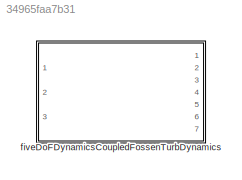
MODEL slx_34965faa7b31
KIND library
CONFIG AbsTol = auto
CONFIG EnableMultiTasking = off
CONFIG FixedStep = auto
CONFIG MaxStep = auto
CONFIG MinStep = auto
CONFIG RelTol = 1e-3
CONFIG SampleTimeConstraint = Unconstrained
CONFIG SolverName = VariableStepAuto
CONFIG StartTime = 0.0
CONFIG StopTime = 10.0
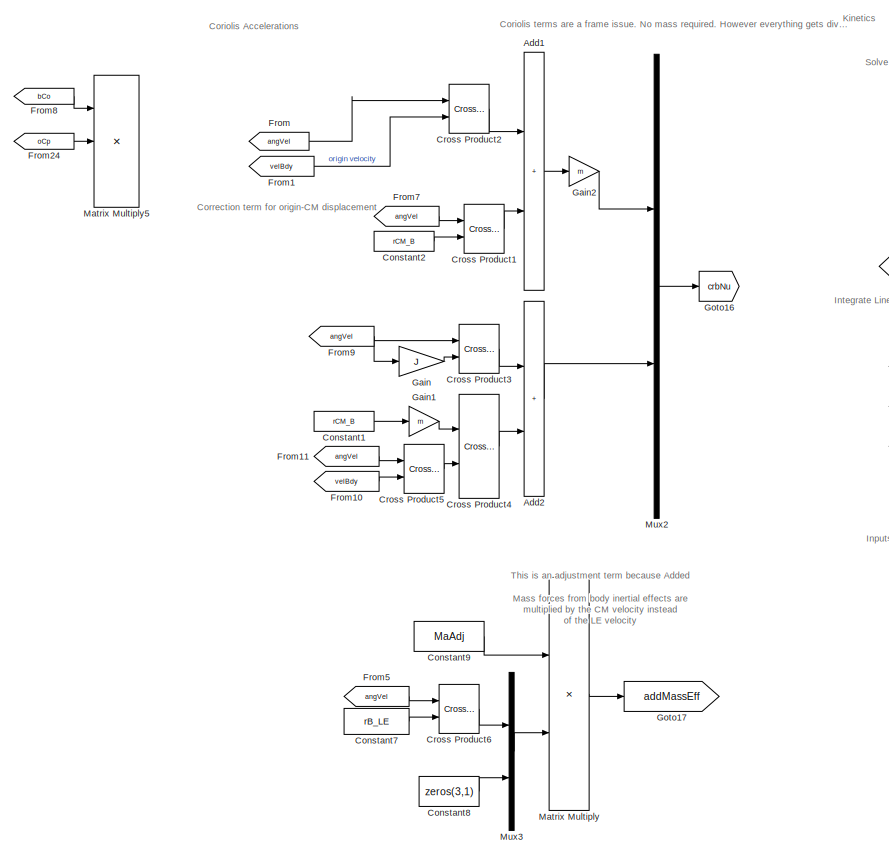
[diagram: fiveDoFDynamicsCoupledFossenTurbDynamics - part 1/3, left side, full height]
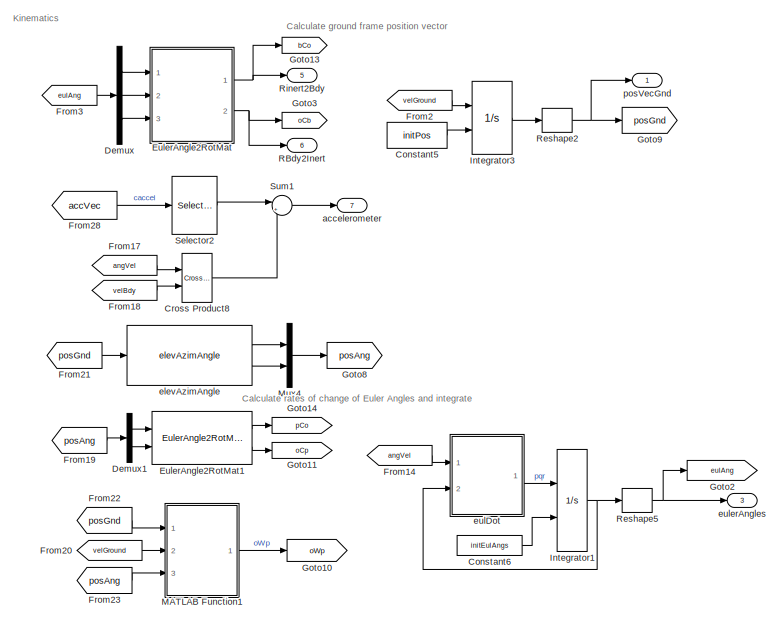
[diagram: fiveDoFDynamicsCoupledFossenTurbDynamics - part 2/3, middle right region]
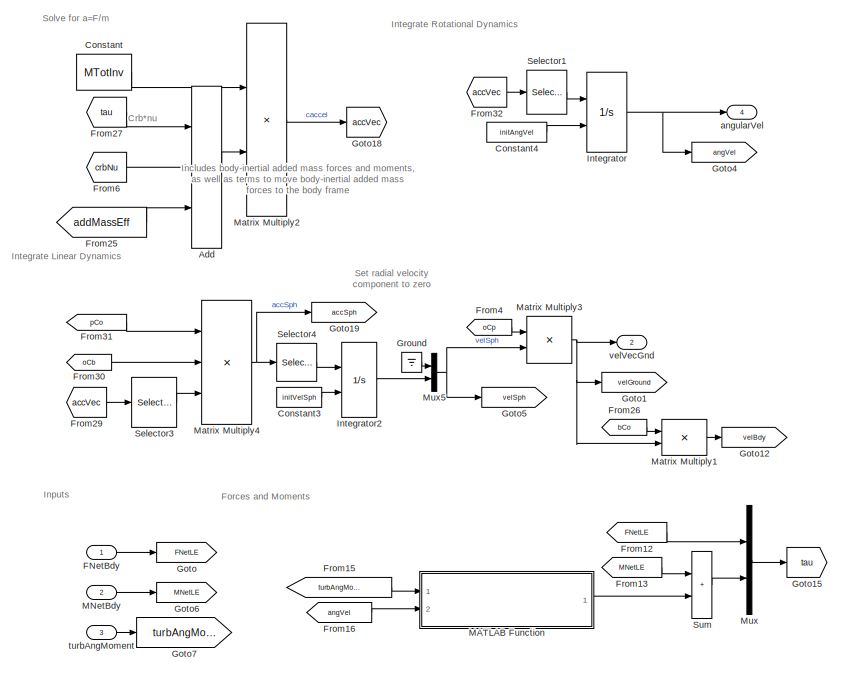
[diagram: fiveDoFDynamicsCoupledFossenTurbDynamics - part 3/3, center side, full height]
BLOCK [SubSystem] fiveDoFDynamicsCoupledFossenTurbDynamics
  Ports = [3, 7]
  RequestExecContextInheritance = off
  VariantControl = VSS_sixDoFDynamics_sixDoFDynamicsCoupledFossenTurbDynamics
BLOCK [Sum] fiveDoFDynamicsCoupledFossenTurbDynamics/Add
  IconShape = rectangular
  Inputs = +-+
  Ports = [3, 1]
BLOCK [Sum] fiveDoFDynamicsCoupledFossenTurbDynamics/Add1
  IconShape = rectangular
  Ports = [2, 1]
BLOCK [Sum] fiveDoFDynamicsCoupledFossenTurbDynamics/Add2
  IconShape = rectangular
  Ports = [2, 1]
BLOCK [Constant] fiveDoFDynamicsCoupledFossenTurbDynamics/Constant
  Value = MTotInv
  VectorParams1D = off
BLOCK [Constant] fiveDoFDynamicsCoupledFossenTurbDynamics/Constant1
  Value = rCM_B
BLOCK [Constant] fiveDoFDynamicsCoupledFossenTurbDynamics/Constant2
  Value = rCM_B
BLOCK [Constant] fiveDoFDynamicsCoupledFossenTurbDynamics/Constant3
  Value = initVelSph
BLOCK [Constant] fiveDoFDynamicsCoupledFossenTurbDynamics/Constant4
  Value = initAngVel
BLOCK [Constant] fiveDoFDynamicsCoupledFossenTurbDynamics/Constant5
  Value = initPos
BLOCK [Constant] fiveDoFDynamicsCoupledFossenTurbDynamics/Constant6
  Value = initEulAngs
BLOCK [Constant] fiveDoFDynamicsCoupledFossenTurbDynamics/Constant7
  Value = rB_LE
BLOCK [Constant] fiveDoFDynamicsCoupledFossenTurbDynamics/Constant8
  Value = zeros(3,1)
BLOCK [Constant] fiveDoFDynamicsCoupledFossenTurbDynamics/Constant9
  Value = MaAdj
BLOCK [Reference] fiveDoFDynamicsCoupledFossenTurbDynamics/Cross Product1  REF=vrlib/Utilities/Cross Product
  Ports = [2, 1]
  SourceBlock = vrlib/Utilities/Cross Product
  SourceProductBaseCode = SL
  SourceType = Cross Product
BLOCK [Reference] fiveDoFDynamicsCoupledFossenTurbDynamics/Cross Product2  REF=vrlib/Utilities/Cross Product
  Ports = [2, 1]
  SourceBlock = vrlib/Utilities/Cross Product
  SourceProductBaseCode = SL
  SourceType = Cross Product
BLOCK [Reference] fiveDoFDynamicsCoupledFossenTurbDynamics/Cross Product3  REF=vrlib/Utilities/Cross Product
  Ports = [2, 1]
  SourceBlock = vrlib/Utilities/Cross Product
  SourceProductBaseCode = SL
  SourceType = Cross Product
BLOCK [Reference] fiveDoFDynamicsCoupledFossenTurbDynamics/Cross Product4  REF=vrlib/Utilities/Cross Product
  Ports = [2, 1]
  SourceBlock = vrlib/Utilities/Cross Product
  SourceProductBaseCode = SL
  SourceType = Cross Product
BLOCK [Reference] fiveDoFDynamicsCoupledFossenTurbDynamics/Cross Product5  REF=vrlib/Utilities/Cross Product
  Ports = [2, 1]
  SourceBlock = vrlib/Utilities/Cross Product
  SourceProductBaseCode = SL
  SourceType = Cross Product
BLOCK [Reference] fiveDoFDynamicsCoupledFossenTurbDynamics/Cross Product6  REF=vrlib/Utilities/Cross Product
  Ports = [2, 1]
  SourceBlock = vrlib/Utilities/Cross Product
  SourceProductBaseCode = SL
  SourceType = Cross Product
BLOCK [Reference] fiveDoFDynamicsCoupledFossenTurbDynamics/Cross Product8  REF=vrlib/Utilities/Cross Product
  Ports = [2, 1]
  SourceBlock = vrlib/Utilities/Cross Product
  SourceProductBaseCode = SL
  SourceType = Cross Product
BLOCK [Demux] fiveDoFDynamicsCoupledFossenTurbDynamics/Demux
  Outputs = 3
  Ports = [1, 3]
BLOCK [Demux] fiveDoFDynamicsCoupledFossenTurbDynamics/Demux1
  Outputs = 2
  Ports = [1, 2]
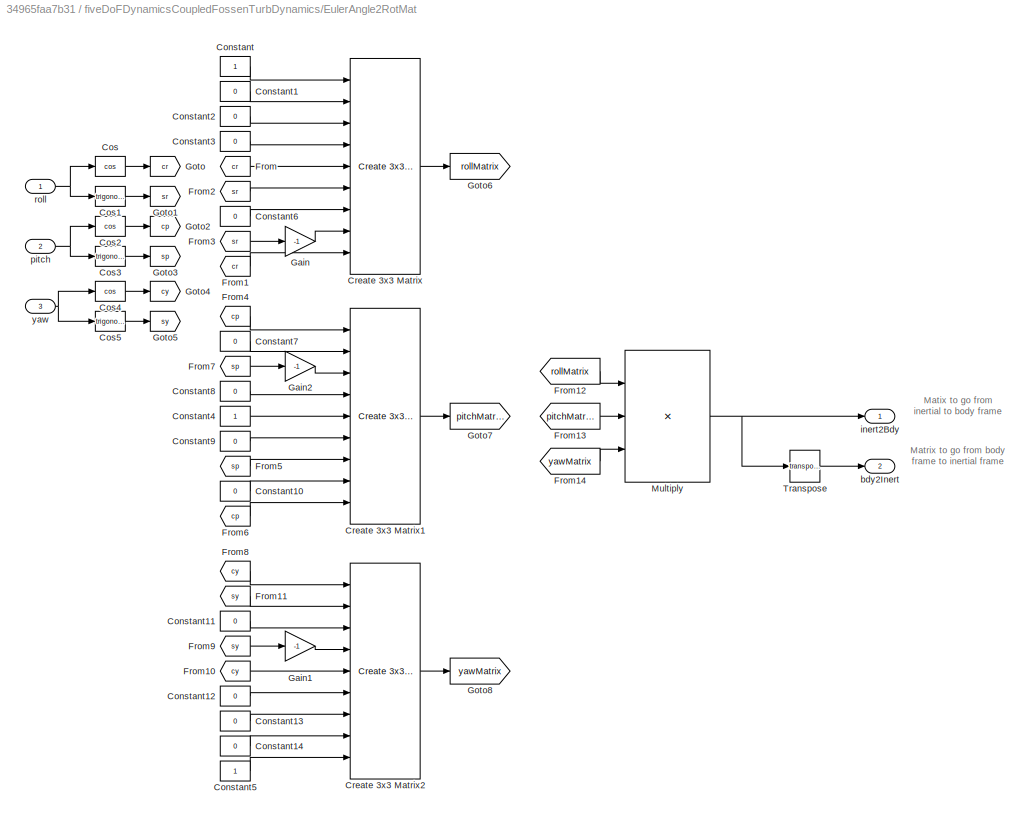
BLOCK [SubSystem] fiveDoFDynamicsCoupledFossenTurbDynamics/EulerAngle2RotMat
  AncestorBlock = eulAng2RotMat_ul/EulerAngle2RotMat
  Ports = [3, 2]
  RequestExecContextInheritance = off
BLOCK [Constant] fiveDoFDynamicsCoupledFossenTurbDynamics/EulerAngle2RotMat/Constant
BLOCK [Constant] fiveDoFDynamicsCoupledFossenTurbDynamics/EulerAngle2RotMat/Constant1
  Value = 0
BLOCK [Constant] fiveDoFDynamicsCoupledFossenTurbDynamics/EulerAngle2RotMat/Constant10
  Value = 0
BLOCK [Constant] fiveDoFDynamicsCoupledFossenTurbDynamics/EulerAngle2RotMat/Constant11
  Value = 0
BLOCK [Constant] fiveDoFDynamicsCoupledFossenTurbDynamics/EulerAngle2RotMat/Constant12
  Value = 0
BLOCK [Constant] fiveDoFDynamicsCoupledFossenTurbDynamics/EulerAngle2RotMat/Constant13
  Value = 0
BLOCK [Constant] fiveDoFDynamicsCoupledFossenTurbDynamics/EulerAngle2RotMat/Constant14
  Value = 0
BLOCK [Constant] fiveDoFDynamicsCoupledFossenTurbDynamics/EulerAngle2RotMat/Constant2
  Value = 0
BLOCK [Constant] fiveDoFDynamicsCoupledFossenTurbDynamics/EulerAngle2RotMat/Constant3
  Value = 0
BLOCK [Constant] fiveDoFDynamicsCoupledFossenTurbDynamics/EulerAngle2RotMat/Constant4
BLOCK [Constant] fiveDoFDynamicsCoupledFossenTurbDynamics/EulerAngle2RotMat/Constant5
BLOCK [Constant] fiveDoFDynamicsCoupledFossenTurbDynamics/EulerAngle2RotMat/Constant6
  Value = 0
BLOCK [Constant] fiveDoFDynamicsCoupledFossenTurbDynamics/EulerAngle2RotMat/Constant7
  Value = 0
BLOCK [Constant] fiveDoFDynamicsCoupledFossenTurbDynamics/EulerAngle2RotMat/Constant8
  Value = 0
BLOCK [Constant] fiveDoFDynamicsCoupledFossenTurbDynamics/EulerAngle2RotMat/Constant9
  Value = 0
BLOCK [Trigonometry] fiveDoFDynamicsCoupledFossenTurbDynamics/EulerAngle2RotMat/Cos
  Operator = cos
  Ports = [1, 1]
BLOCK [Trigonometry] fiveDoFDynamicsCoupledFossenTurbDynamics/EulerAngle2RotMat/Cos1
  Ports = [1, 1]
BLOCK [Trigonometry] fiveDoFDynamicsCoupledFossenTurbDynamics/EulerAngle2RotMat/Cos2
  Operator = cos
  Ports = [1, 1]
BLOCK [Trigonometry] fiveDoFDynamicsCoupledFossenTurbDynamics/EulerAngle2RotMat/Cos3
  Ports = [1, 1]
BLOCK [Trigonometry] fiveDoFDynamicsCoupledFossenTurbDynamics/EulerAngle2RotMat/Cos4
  Operator = cos
  Ports = [1, 1]
BLOCK [Trigonometry] fiveDoFDynamicsCoupledFossenTurbDynamics/EulerAngle2RotMat/Cos5
  Ports = [1, 1]
BLOCK [Reference] fiveDoFDynamicsCoupledFossenTurbDynamics/EulerAngle2RotMat/Create 3x3 Matrix  REF=sharedutil/Create 3x3 Matrix
  Ports = [9, 1]
  SourceBlock = sharedutil/Create 3x3 Matrix
  SourceProductBaseCode = AE,PW,DR,MT,VE
  SourceType = Create 3x3 Matrix
BLOCK [Reference] fiveDoFDynamicsCoupledFossenTurbDynamics/EulerAngle2RotMat/Create 3x3 Matrix1  REF=sharedutil/Create 3x3 Matrix
  Ports = [9, 1]
  SourceBlock = sharedutil/Create 3x3 Matrix
  SourceProductBaseCode = AE,PW,DR,MT,VE
  SourceType = Create 3x3 Matrix
BLOCK [Reference] fiveDoFDynamicsCoupledFossenTurbDynamics/EulerAngle2RotMat/Create 3x3 Matrix2  REF=sharedutil/Create 3x3 Matrix
  Ports = [9, 1]
  SourceBlock = sharedutil/Create 3x3 Matrix
  SourceProductBaseCode = AE,PW,DR,MT,VE
  SourceType = Create 3x3 Matrix
BLOCK [From] fiveDoFDynamicsCoupledFossenTurbDynamics/EulerAngle2RotMat/From
  GotoTag = cr
BLOCK [From] fiveDoFDynamicsCoupledFossenTurbDynamics/EulerAngle2RotMat/From1
  GotoTag = cr
BLOCK [From] fiveDoFDynamicsCoupledFossenTurbDynamics/EulerAngle2RotMat/From10
  GotoTag = cy
BLOCK [From] fiveDoFDynamicsCoupledFossenTurbDynamics/EulerAngle2RotMat/From11
  GotoTag = sy
BLOCK [From] fiveDoFDynamicsCoupledFossenTurbDynamics/EulerAngle2RotMat/From12
  GotoTag = rollMatrix
BLOCK [From] fiveDoFDynamicsCoupledFossenTurbDynamics/EulerAngle2RotMat/From13
  GotoTag = pitchMatrix
BLOCK [From] fiveDoFDynamicsCoupledFossenTurbDynamics/EulerAngle2RotMat/From14
  GotoTag = yawMatrix
BLOCK [From] fiveDoFDynamicsCoupledFossenTurbDynamics/EulerAngle2RotMat/From2
  GotoTag = sr
BLOCK [From] fiveDoFDynamicsCoupledFossenTurbDynamics/EulerAngle2RotMat/From3
  GotoTag = sr
BLOCK [From] fiveDoFDynamicsCoupledFossenTurbDynamics/EulerAngle2RotMat/From4
  GotoTag = cp
BLOCK [From] fiveDoFDynamicsCoupledFossenTurbDynamics/EulerAngle2RotMat/From5
  GotoTag = sp
BLOCK [From] fiveDoFDynamicsCoupledFossenTurbDynamics/EulerAngle2RotMat/From6
  GotoTag = cp
BLOCK [From] fiveDoFDynamicsCoupledFossenTurbDynamics/EulerAngle2RotMat/From7
  GotoTag = sp
BLOCK [From] fiveDoFDynamicsCoupledFossenTurbDynamics/EulerAngle2RotMat/From8
  GotoTag = cy
BLOCK [From] fiveDoFDynamicsCoupledFossenTurbDynamics/EulerAngle2RotMat/From9
  GotoTag = sy
BLOCK [Gain] fiveDoFDynamicsCoupledFossenTurbDynamics/EulerAngle2RotMat/Gain
  Gain = -1
BLOCK [Gain] fiveDoFDynamicsCoupledFossenTurbDynamics/EulerAngle2RotMat/Gain1
  Gain = -1
BLOCK [Gain] fiveDoFDynamicsCoupledFossenTurbDynamics/EulerAngle2RotMat/Gain2
  Gain = -1
BLOCK [Goto] fiveDoFDynamicsCoupledFossenTurbDynamics/EulerAngle2RotMat/Goto
  GotoTag = cr
BLOCK [Goto] fiveDoFDynamicsCoupledFossenTurbDynamics/EulerAngle2RotMat/Goto1
  GotoTag = sr
BLOCK [Goto] fiveDoFDynamicsCoupledFossenTurbDynamics/EulerAngle2RotMat/Goto2
  GotoTag = cp
BLOCK [Goto] fiveDoFDynamicsCoupledFossenTurbDynamics/EulerAngle2RotMat/Goto3
  GotoTag = sp
BLOCK [Goto] fiveDoFDynamicsCoupledFossenTurbDynamics/EulerAngle2RotMat/Goto4
  GotoTag = cy
BLOCK [Goto] fiveDoFDynamicsCoupledFossenTurbDynamics/EulerAngle2RotMat/Goto5
  GotoTag = sy
BLOCK [Goto] fiveDoFDynamicsCoupledFossenTurbDynamics/EulerAngle2RotMat/Goto6
  GotoTag = rollMatrix
BLOCK [Goto] fiveDoFDynamicsCoupledFossenTurbDynamics/EulerAngle2RotMat/Goto7
  GotoTag = pitchMatrix
BLOCK [Goto] fiveDoFDynamicsCoupledFossenTurbDynamics/EulerAngle2RotMat/Goto8
  GotoTag = yawMatrix
BLOCK [Product] fiveDoFDynamicsCoupledFossenTurbDynamics/EulerAngle2RotMat/Multiply
  Inputs = 3
  Multiplication = Matrix(*)
  Ports = [3, 1]
BLOCK [Math] fiveDoFDynamicsCoupledFossenTurbDynamics/EulerAngle2RotMat/Transpose
  Operator = transpose
  Ports = [1, 1]
  SignedPower = on
BLOCK [Outport] fiveDoFDynamicsCoupledFossenTurbDynamics/EulerAngle2RotMat/bdy2Inert
  Port = 2
  VectorParamsAs1DForOutWhenUnconnected = off
BLOCK [Outport] fiveDoFDynamicsCoupledFossenTurbDynamics/EulerAngle2RotMat/inert2Bdy
  VectorParamsAs1DForOutWhenUnconnected = off
BLOCK [Inport] fiveDoFDynamicsCoupledFossenTurbDynamics/EulerAngle2RotMat/pitch
  Port = 2
BLOCK [Inport] fiveDoFDynamicsCoupledFossenTurbDynamics/EulerAngle2RotMat/roll
BLOCK [Inport] fiveDoFDynamicsCoupledFossenTurbDynamics/EulerAngle2RotMat/yaw
  Port = 3
BLOCK [Reference] fiveDoFDynamicsCoupledFossenTurbDynamics/EulerAngle2RotMat1  REF=posAng2RotMat_ul/EulerAngle2RotMat
  Ports = [2, 2]
  SourceBlock = posAng2RotMat_ul/EulerAngle2RotMat
  SourceType = SubSystem
BLOCK [Inport] fiveDoFDynamicsCoupledFossenTurbDynamics/FNetBdy
BLOCK [From] fiveDoFDynamicsCoupledFossenTurbDynamics/From
  GotoTag = angVel
BLOCK [From] fiveDoFDynamicsCoupledFossenTurbDynamics/From1
  GotoTag = velBdy
BLOCK [From] fiveDoFDynamicsCoupledFossenTurbDynamics/From10
  GotoTag = velBdy
BLOCK [From] fiveDoFDynamicsCoupledFossenTurbDynamics/From11
  GotoTag = angVel
BLOCK [From] fiveDoFDynamicsCoupledFossenTurbDynamics/From12
  GotoTag = FNetLE
BLOCK [From] fiveDoFDynamicsCoupledFossenTurbDynamics/From13
  GotoTag = MNetLE
BLOCK [From] fiveDoFDynamicsCoupledFossenTurbDynamics/From14
  GotoTag = angVel
BLOCK [From] fiveDoFDynamicsCoupledFossenTurbDynamics/From15
  GotoTag = turbAngMoment
BLOCK [From] fiveDoFDynamicsCoupledFossenTurbDynamics/From16
  GotoTag = angVel
BLOCK [From] fiveDoFDynamicsCoupledFossenTurbDynamics/From17
  GotoTag = angVel
BLOCK [From] fiveDoFDynamicsCoupledFossenTurbDynamics/From18
  GotoTag = velBdy
BLOCK [From] fiveDoFDynamicsCoupledFossenTurbDynamics/From19
  GotoTag = posAng
BLOCK [From] fiveDoFDynamicsCoupledFossenTurbDynamics/From2
  GotoTag = velGround
BLOCK [From] fiveDoFDynamicsCoupledFossenTurbDynamics/From20
  GotoTag = velGround
BLOCK [From] fiveDoFDynamicsCoupledFossenTurbDynamics/From21
  GotoTag = posGnd
BLOCK [From] fiveDoFDynamicsCoupledFossenTurbDynamics/From22
  GotoTag = posGnd
BLOCK [From] fiveDoFDynamicsCoupledFossenTurbDynamics/From23
  GotoTag = posAng
BLOCK [From] fiveDoFDynamicsCoupledFossenTurbDynamics/From24
  Commented = on
  GotoTag = oCp
BLOCK [From] fiveDoFDynamicsCoupledFossenTurbDynamics/From25
  GotoTag = addMassEff
BLOCK [From] fiveDoFDynamicsCoupledFossenTurbDynamics/From26
  GotoTag = bCo
BLOCK [From] fiveDoFDynamicsCoupledFossenTurbDynamics/From27
  GotoTag = tau
BLOCK [From] fiveDoFDynamicsCoupledFossenTurbDynamics/From28
  GotoTag = accVec
BLOCK [From] fiveDoFDynamicsCoupledFossenTurbDynamics/From29
  GotoTag = accVec
BLOCK [From] fiveDoFDynamicsCoupledFossenTurbDynamics/From3
  GotoTag = eulAng
BLOCK [From] fiveDoFDynamicsCoupledFossenTurbDynamics/From30
  GotoTag = oCb
BLOCK [From] fiveDoFDynamicsCoupledFossenTurbDynamics/From31
  GotoTag = pCo
BLOCK [From] fiveDoFDynamicsCoupledFossenTurbDynamics/From32
  GotoTag = accVec
BLOCK [From] fiveDoFDynamicsCoupledFossenTurbDynamics/From4
  GotoTag = oCp
BLOCK [From] fiveDoFDynamicsCoupledFossenTurbDynamics/From5
  GotoTag = angVel
BLOCK [From] fiveDoFDynamicsCoupledFossenTurbDynamics/From6
  GotoTag = crbNu
BLOCK [From] fiveDoFDynamicsCoupledFossenTurbDynamics/From7
  GotoTag = angVel
BLOCK [From] fiveDoFDynamicsCoupledFossenTurbDynamics/From8
  Commented = on
  GotoTag = bCo
BLOCK [From] fiveDoFDynamicsCoupledFossenTurbDynamics/From9
  GotoTag = angVel
BLOCK [Gain] fiveDoFDynamicsCoupledFossenTurbDynamics/Gain
  Gain = J
  Multiplication = Matrix(K*u)
BLOCK [Gain] fiveDoFDynamicsCoupledFossenTurbDynamics/Gain1
  Gain = m
BLOCK [Gain] fiveDoFDynamicsCoupledFossenTurbDynamics/Gain2
  Gain = m
BLOCK [Goto] fiveDoFDynamicsCoupledFossenTurbDynamics/Goto
  GotoTag = FNetLE
BLOCK [Goto] fiveDoFDynamicsCoupledFossenTurbDynamics/Goto1
  GotoTag = velGround
BLOCK [Goto] fiveDoFDynamicsCoupledFossenTurbDynamics/Goto10
  GotoTag = oWp
BLOCK [Goto] fiveDoFDynamicsCoupledFossenTurbDynamics/Goto11
  GotoTag = oCp
BLOCK [Goto] fiveDoFDynamicsCoupledFossenTurbDynamics/Goto12
  GotoTag = velBdy
BLOCK [Goto] fiveDoFDynamicsCoupledFossenTurbDynamics/Goto13
  GotoTag = bCo
BLOCK [Goto] fiveDoFDynamicsCoupledFossenTurbDynamics/Goto14
  GotoTag = pCo
BLOCK [Goto] fiveDoFDynamicsCoupledFossenTurbDynamics/Goto15
  GotoTag = tau
BLOCK [Goto] fiveDoFDynamicsCoupledFossenTurbDynamics/Goto16
  GotoTag = crbNu
BLOCK [Goto] fiveDoFDynamicsCoupledFossenTurbDynamics/Goto17
  GotoTag = addMassEff
BLOCK [Goto] fiveDoFDynamicsCoupledFossenTurbDynamics/Goto18
  GotoTag = accVec
BLOCK [Goto] fiveDoFDynamicsCoupledFossenTurbDynamics/Goto19
  GotoTag = accSph
BLOCK [Goto] fiveDoFDynamicsCoupledFossenTurbDynamics/Goto2
  GotoTag = eulAng
BLOCK [Goto] fiveDoFDynamicsCoupledFossenTurbDynamics/Goto3
  GotoTag = oCb
BLOCK [Goto] fiveDoFDynamicsCoupledFossenTurbDynamics/Goto4
  GotoTag = angVel
BLOCK [Goto] fiveDoFDynamicsCoupledFossenTurbDynamics/Goto5
  GotoTag = velSph
BLOCK [Goto] fiveDoFDynamicsCoupledFossenTurbDynamics/Goto6
  GotoTag = MNetLE
BLOCK [Goto] fiveDoFDynamicsCoupledFossenTurbDynamics/Goto7
  GotoTag = turbAngMoment
BLOCK [Goto] fiveDoFDynamicsCoupledFossenTurbDynamics/Goto8
  GotoTag = posAng
BLOCK [Goto] fiveDoFDynamicsCoupledFossenTurbDynamics/Goto9
  GotoTag = posGnd
BLOCK [Ground] fiveDoFDynamicsCoupledFossenTurbDynamics/Ground
BLOCK [Integrator] fiveDoFDynamicsCoupledFossenTurbDynamics/Integrator
  InitialConditionSource = external
  Ports = [2, 1]
BLOCK [Integrator] fiveDoFDynamicsCoupledFossenTurbDynamics/Integrator1
  InitialCondition = initEulAngs
  InitialConditionSource = external
  Ports = [2, 1]
BLOCK [Integrator] fiveDoFDynamicsCoupledFossenTurbDynamics/Integrator2
  ContinuousStateAttributes = {'vA','vE'}
  InitialConditionSource = external
  Ports = [2, 1]
BLOCK [Integrator] fiveDoFDynamicsCoupledFossenTurbDynamics/Integrator3
  InitialCondition = initPos
  InitialConditionSource = external
  Ports = [2, 1]
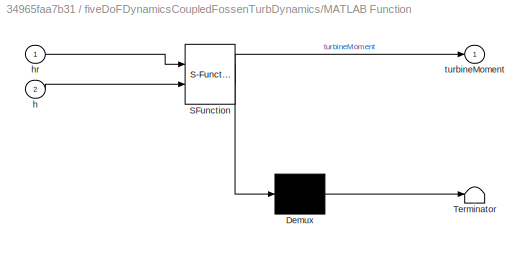
BLOCK [SubSystem] fiveDoFDynamicsCoupledFossenTurbDynamics/MATLAB Function
  ErrorFcn = Stateflow.Translate.translate
  PermitHierarchicalResolution = ExplicitOnly
  Ports = [2, 1]
  RequestExecContextInheritance = off
  SFBlockType = MATLAB Function
  TreatAsAtomicUnit = on
BLOCK [Demux] fiveDoFDynamicsCoupledFossenTurbDynamics/MATLAB Function/ Demux 
  Outputs = 1
  Ports = [1, 1]
BLOCK [S-Function] fiveDoFDynamicsCoupledFossenTurbDynamics/MATLAB Function/ SFunction 
  EnableBusSupport = off
  FunctionName = sf_sfun
  PortCounts = [2 2]
  Ports = [2, 2]
  SFcnIsStateOwnerBlock = off
  SFunctionDeploymentMode = off
  Tag = Stateflow S-Function 113
BLOCK [Terminator] fiveDoFDynamicsCoupledFossenTurbDynamics/MATLAB Function/ Terminator 
BLOCK [Inport] fiveDoFDynamicsCoupledFossenTurbDynamics/MATLAB Function/h
  Port = 2
BLOCK [Inport] fiveDoFDynamicsCoupledFossenTurbDynamics/MATLAB Function/hr
BLOCK [Outport] fiveDoFDynamicsCoupledFossenTurbDynamics/MATLAB Function/turbineMoment
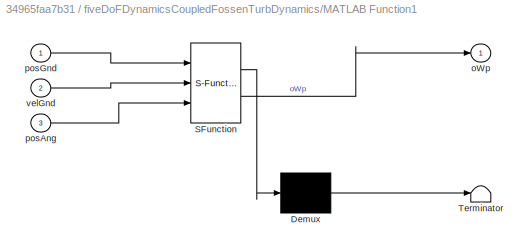
BLOCK [SubSystem] fiveDoFDynamicsCoupledFossenTurbDynamics/MATLAB Function1
  ErrorFcn = Stateflow.Translate.translate
  PermitHierarchicalResolution = ExplicitOnly
  Ports = [3, 1]
  RequestExecContextInheritance = off
  SFBlockType = MATLAB Function
  TreatAsAtomicUnit = on
BLOCK [Demux] fiveDoFDynamicsCoupledFossenTurbDynamics/MATLAB Function1/ Demux 
  Outputs = 1
  Ports = [1, 1]
BLOCK [S-Function] fiveDoFDynamicsCoupledFossenTurbDynamics/MATLAB Function1/ SFunction 
  EnableBusSupport = off
  FunctionName = sf_sfun
  PortCounts = [3 2]
  Ports = [3, 2]
  SFcnIsStateOwnerBlock = off
  SFunctionDeploymentMode = off
  Tag = Stateflow S-Function 2
BLOCK [Terminator] fiveDoFDynamicsCoupledFossenTurbDynamics/MATLAB Function1/ Terminator 
BLOCK [Outport] fiveDoFDynamicsCoupledFossenTurbDynamics/MATLAB Function1/oWp
BLOCK [Inport] fiveDoFDynamicsCoupledFossenTurbDynamics/MATLAB Function1/posAng
  Port = 3
BLOCK [Inport] fiveDoFDynamicsCoupledFossenTurbDynamics/MATLAB Function1/posGnd
BLOCK [Inport] fiveDoFDynamicsCoupledFossenTurbDynamics/MATLAB Function1/velGnd
  Port = 2
BLOCK [Inport] fiveDoFDynamicsCoupledFossenTurbDynamics/MNetBdy
  Port = 2
BLOCK [Product] fiveDoFDynamicsCoupledFossenTurbDynamics/Matrix Multiply
  Multiplication = Matrix(*)
  Ports = [2, 1]
BLOCK [Product] fiveDoFDynamicsCoupledFossenTurbDynamics/Matrix Multiply1
  Multiplication = Matrix(*)
  Ports = [2, 1]
BLOCK [Product] fiveDoFDynamicsCoupledFossenTurbDynamics/Matrix Multiply2
  Multiplication = Matrix(*)
  Ports = [2, 1]
BLOCK [Product] fiveDoFDynamicsCoupledFossenTurbDynamics/Matrix Multiply3
  Multiplication = Matrix(*)
  Ports = [2, 1]
BLOCK [Product] fiveDoFDynamicsCoupledFossenTurbDynamics/Matrix Multiply4
  Inputs = 3
  Multiplication = Matrix(*)
  Ports = [3, 1]
BLOCK [Product] fiveDoFDynamicsCoupledFossenTurbDynamics/Matrix Multiply5
  Commented = on
  Inputs = 3
  Multiplication = Matrix(*)
  Ports = [3, 1]
BLOCK [Mux] fiveDoFDynamicsCoupledFossenTurbDynamics/Mux
  DisplayOption = bar
  Inputs = 2
  Ports = [2, 1]
BLOCK [Mux] fiveDoFDynamicsCoupledFossenTurbDynamics/Mux2
  DisplayOption = bar
  Inputs = 2
  Ports = [2, 1]
BLOCK [Mux] fiveDoFDynamicsCoupledFossenTurbDynamics/Mux3
  DisplayOption = bar
  Inputs = 2
  Ports = [2, 1]
BLOCK [Mux] fiveDoFDynamicsCoupledFossenTurbDynamics/Mux4
  DisplayOption = bar
  Inputs = 2
  Ports = [2, 1]
BLOCK [Mux] fiveDoFDynamicsCoupledFossenTurbDynamics/Mux5
  DisplayOption = bar
  Inputs = 2
  Ports = [2, 1]
BLOCK [Outport] fiveDoFDynamicsCoupledFossenTurbDynamics/RBdy2Inert
  Port = 6
  VectorParamsAs1DForOutWhenUnconnected = off
BLOCK [Reshape] fiveDoFDynamicsCoupledFossenTurbDynamics/Reshape2
  OutputDimensionality = Column vector (2-D)
  Ports = [1, 1]
BLOCK [Reshape] fiveDoFDynamicsCoupledFossenTurbDynamics/Reshape5
  OutputDimensionality = Column vector (2-D)
  Ports = [1, 1]
BLOCK [Outport] fiveDoFDynamicsCoupledFossenTurbDynamics/Rinert2Bdy
  Port = 5
  VectorParamsAs1DForOutWhenUnconnected = off
BLOCK [Selector] fiveDoFDynamicsCoupledFossenTurbDynamics/Selector1
  IndexOptions = Index vector (dialog)
  Indices = [4 5 6]
  InputPortWidth = 6
  OutputSizes = 1
  Ports = [1, 1]
BLOCK [Selector] fiveDoFDynamicsCoupledFossenTurbDynamics/Selector2
  IndexOptions = Index vector (dialog)
  Indices = [1 2 3]
  InputPortWidth = 6
  OutputSizes = 1
  Ports = [1, 1]
BLOCK [Selector] fiveDoFDynamicsCoupledFossenTurbDynamics/Selector3
  IndexOptions = Index vector (dialog)
  Indices = [1 2 3]
  InputPortWidth = 6
  OutputSizes = 1
  Ports = [1, 1]
BLOCK [Selector] fiveDoFDynamicsCoupledFossenTurbDynamics/Selector4
  IndexOptions = Index vector (dialog)
  Indices = [2 3]
  InputPortWidth = 3
  OutputSizes = 1
  Ports = [1, 1]
BLOCK [Sum] fiveDoFDynamicsCoupledFossenTurbDynamics/Sum
  IconShape = rectangular
  Ports = [2, 1]
BLOCK [Sum] fiveDoFDynamicsCoupledFossenTurbDynamics/Sum1
  Inputs = |++
  Ports = [2, 1]
BLOCK [Outport] fiveDoFDynamicsCoupledFossenTurbDynamics/accelerometer
  Port = 7
  VectorParamsAs1DForOutWhenUnconnected = off
BLOCK [Outport] fiveDoFDynamicsCoupledFossenTurbDynamics/angularVel
  Port = 4
  VectorParamsAs1DForOutWhenUnconnected = off
BLOCK [Reference] fiveDoFDynamicsCoupledFossenTurbDynamics/elevAzimAngle  REF=elevAzimAngles/elevAzimAngle
  Ports = [1, 2]
  SourceBlock = elevAzimAngles/elevAzimAngle
  SourceType = SubSystem
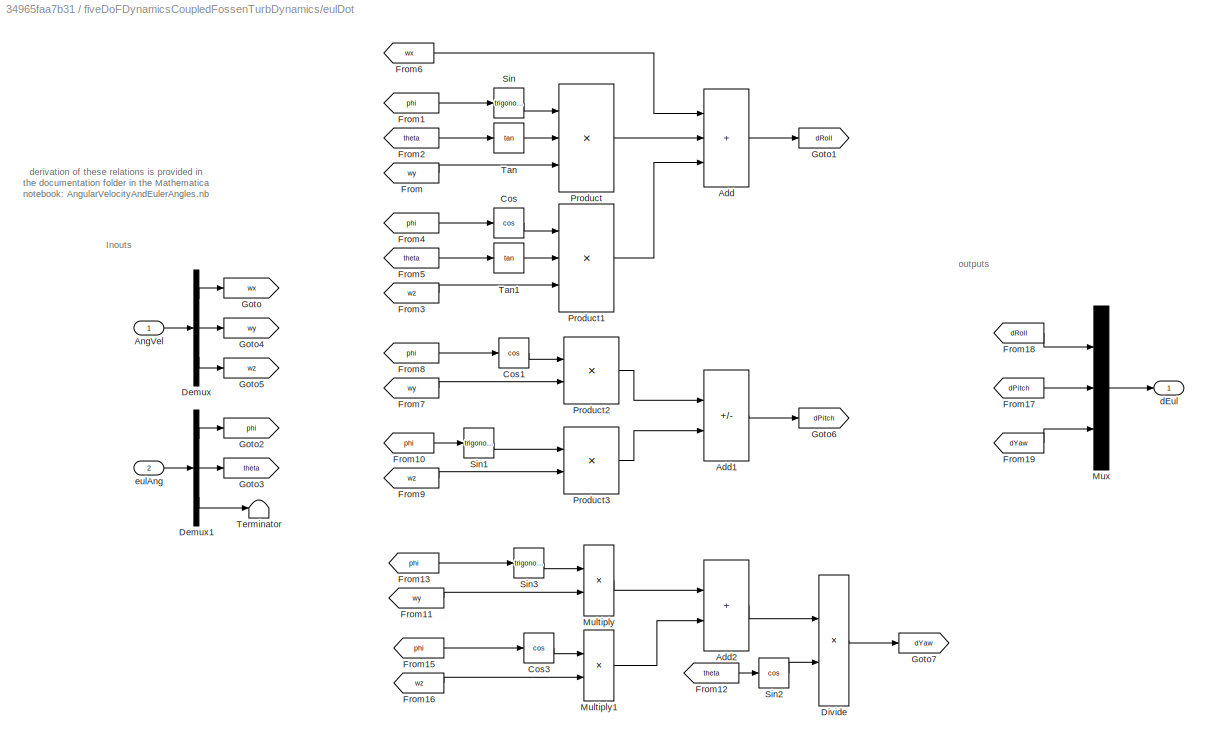
BLOCK [SubSystem] fiveDoFDynamicsCoupledFossenTurbDynamics/eulDot
  AncestorBlock = eulDot/eulDot
  Ports = [2, 1]
  RequestExecContextInheritance = off
BLOCK [Sum] fiveDoFDynamicsCoupledFossenTurbDynamics/eulDot/Add
  IconShape = rectangular
  Inputs = +++
  Ports = [3, 1]
BLOCK [Sum] fiveDoFDynamicsCoupledFossenTurbDynamics/eulDot/Add1
  IconShape = rectangular
  Inputs = +-
  Ports = [2, 1]
BLOCK [Sum] fiveDoFDynamicsCoupledFossenTurbDynamics/eulDot/Add2
  IconShape = rectangular
  Ports = [2, 1]
BLOCK [Inport] fiveDoFDynamicsCoupledFossenTurbDynamics/eulDot/AngVel
BLOCK [Trigonometry] fiveDoFDynamicsCoupledFossenTurbDynamics/eulDot/Cos
  Operator = cos
  Ports = [1, 1]
BLOCK [Trigonometry] fiveDoFDynamicsCoupledFossenTurbDynamics/eulDot/Cos1
  Operator = cos
  Ports = [1, 1]
BLOCK [Trigonometry] fiveDoFDynamicsCoupledFossenTurbDynamics/eulDot/Cos3
  Operator = cos
  Ports = [1, 1]
BLOCK [Demux] fiveDoFDynamicsCoupledFossenTurbDynamics/eulDot/Demux
  Outputs = 3
  Ports = [1, 3]
BLOCK [Demux] fiveDoFDynamicsCoupledFossenTurbDynamics/eulDot/Demux1
  Outputs = 3
  Ports = [1, 3]
BLOCK [Product] fiveDoFDynamicsCoupledFossenTurbDynamics/eulDot/Divide
  Inputs = */
  Ports = [2, 1]
BLOCK [From] fiveDoFDynamicsCoupledFossenTurbDynamics/eulDot/From
  GotoTag = wy
BLOCK [From] fiveDoFDynamicsCoupledFossenTurbDynamics/eulDot/From1
  GotoTag = phi
BLOCK [From] fiveDoFDynamicsCoupledFossenTurbDynamics/eulDot/From10
  GotoTag = phi
BLOCK [From] fiveDoFDynamicsCoupledFossenTurbDynamics/eulDot/From11
  GotoTag = wy
BLOCK [From] fiveDoFDynamicsCoupledFossenTurbDynamics/eulDot/From12
  GotoTag = theta
BLOCK [From] fiveDoFDynamicsCoupledFossenTurbDynamics/eulDot/From13
  GotoTag = phi
BLOCK [From] fiveDoFDynamicsCoupledFossenTurbDynamics/eulDot/From15
  GotoTag = phi
BLOCK [From] fiveDoFDynamicsCoupledFossenTurbDynamics/eulDot/From16
  GotoTag = wz
BLOCK [From] fiveDoFDynamicsCoupledFossenTurbDynamics/eulDot/From17
  GotoTag = dPitch
BLOCK [From] fiveDoFDynamicsCoupledFossenTurbDynamics/eulDot/From18
  GotoTag = dRoll
BLOCK [From] fiveDoFDynamicsCoupledFossenTurbDynamics/eulDot/From19
  GotoTag = dYaw
BLOCK [From] fiveDoFDynamicsCoupledFossenTurbDynamics/eulDot/From2
  GotoTag = theta
BLOCK [From] fiveDoFDynamicsCoupledFossenTurbDynamics/eulDot/From3
  GotoTag = wz
BLOCK [From] fiveDoFDynamicsCoupledFossenTurbDynamics/eulDot/From4
  GotoTag = phi
BLOCK [From] fiveDoFDynamicsCoupledFossenTurbDynamics/eulDot/From5
  GotoTag = theta
BLOCK [From] fiveDoFDynamicsCoupledFossenTurbDynamics/eulDot/From6
  GotoTag = wx
BLOCK [From] fiveDoFDynamicsCoupledFossenTurbDynamics/eulDot/From7
  GotoTag = wy
BLOCK [From] fiveDoFDynamicsCoupledFossenTurbDynamics/eulDot/From8
  GotoTag = phi
BLOCK [From] fiveDoFDynamicsCoupledFossenTurbDynamics/eulDot/From9
  GotoTag = wz
BLOCK [Goto] fiveDoFDynamicsCoupledFossenTurbDynamics/eulDot/Goto
  GotoTag = wx
BLOCK [Goto] fiveDoFDynamicsCoupledFossenTurbDynamics/eulDot/Goto1
  GotoTag = dRoll
BLOCK [Goto] fiveDoFDynamicsCoupledFossenTurbDynamics/eulDot/Goto2
  GotoTag = phi
BLOCK [Goto] fiveDoFDynamicsCoupledFossenTurbDynamics/eulDot/Goto3
  GotoTag = theta
BLOCK [Goto] fiveDoFDynamicsCoupledFossenTurbDynamics/eulDot/Goto4
  GotoTag = wy
BLOCK [Goto] fiveDoFDynamicsCoupledFossenTurbDynamics/eulDot/Goto5
  GotoTag = wz
BLOCK [Goto] fiveDoFDynamicsCoupledFossenTurbDynamics/eulDot/Goto6
  GotoTag = dPitch
BLOCK [Goto] fiveDoFDynamicsCoupledFossenTurbDynamics/eulDot/Goto7
  GotoTag = dYaw
BLOCK [Product] fiveDoFDynamicsCoupledFossenTurbDynamics/eulDot/Multiply
  Ports = [2, 1]
BLOCK [Product] fiveDoFDynamicsCoupledFossenTurbDynamics/eulDot/Multiply1
  Ports = [2, 1]
BLOCK [Mux] fiveDoFDynamicsCoupledFossenTurbDynamics/eulDot/Mux
  DisplayOption = bar
  Inputs = 3
  Ports = [3, 1]
BLOCK [Product] fiveDoFDynamicsCoupledFossenTurbDynamics/eulDot/Product
  Inputs = 3
  Ports = [3, 1]
BLOCK [Product] fiveDoFDynamicsCoupledFossenTurbDynamics/eulDot/Product1
  Inputs = 3
  Ports = [3, 1]
BLOCK [Product] fiveDoFDynamicsCoupledFossenTurbDynamics/eulDot/Product2
  Ports = [2, 1]
BLOCK [Product] fiveDoFDynamicsCoupledFossenTurbDynamics/eulDot/Product3
  Ports = [2, 1]
BLOCK [Trigonometry] fiveDoFDynamicsCoupledFossenTurbDynamics/eulDot/Sin
  Ports = [1, 1]
BLOCK [Trigonometry] fiveDoFDynamicsCoupledFossenTurbDynamics/eulDot/Sin1
  Ports = [1, 1]
BLOCK [Trigonometry] fiveDoFDynamicsCoupledFossenTurbDynamics/eulDot/Sin2
  Operator = cos
  Ports = [1, 1]
BLOCK [Trigonometry] fiveDoFDynamicsCoupledFossenTurbDynamics/eulDot/Sin3
  Ports = [1, 1]
BLOCK [Trigonometry] fiveDoFDynamicsCoupledFossenTurbDynamics/eulDot/Tan
  Operator = tan
  Ports = [1, 1]
BLOCK [Trigonometry] fiveDoFDynamicsCoupledFossenTurbDynamics/eulDot/Tan1
  Operator = tan
  Ports = [1, 1]
BLOCK [Terminator] fiveDoFDynamicsCoupledFossenTurbDynamics/eulDot/Terminator
BLOCK [Outport] fiveDoFDynamicsCoupledFossenTurbDynamics/eulDot/dEul
  VectorParamsAs1DForOutWhenUnconnected = off
BLOCK [Inport] fiveDoFDynamicsCoupledFossenTurbDynamics/eulDot/eulAng
  Port = 2
BLOCK [Outport] fiveDoFDynamicsCoupledFossenTurbDynamics/eulerAngles
  Port = 3
  VectorParamsAs1DForOutWhenUnconnected = off
BLOCK [Outport] fiveDoFDynamicsCoupledFossenTurbDynamics/posVecGnd
  VectorParamsAs1DForOutWhenUnconnected = off
BLOCK [Inport] fiveDoFDynamicsCoupledFossenTurbDynamics/turbAngMoment
  Port = 3
BLOCK [Outport] fiveDoFDynamicsCoupledFossenTurbDynamics/velVecGnd
  Port = 2
  VectorParamsAs1DForOutWhenUnconnected = off
ANNOTATION fiveDoFDynamicsCoupledFossenTurbDynamics: Integrate Linear Dynamics
ANNOTATION fiveDoFDynamicsCoupledFossenTurbDynamics: Integrate Rotational Dynamics
ANNOTATION fiveDoFDynamicsCoupledFossenTurbDynamics: Solve for a=F/m
ANNOTATION fiveDoFDynamicsCoupledFossenTurbDynamics: Coriolis Accelerations
ANNOTATION fiveDoFDynamicsCoupledFossenTurbDynamics: Includes body-inertial added mass forces and moments, as well as terms to move body-inertial added mass forces to the body frame
ANNOTATION fiveDoFDynamicsCoupledFossenTurbDynamics: This is an adjustment term because Added Mass forces from body inertial effects are multiplied by the CM velocity instead of the LE velocity
ANNOTATION fiveDoFDynamicsCoupledFossenTurbDynamics: Calculate ground frame position vector
ANNOTATION fiveDoFDynamicsCoupledFossenTurbDynamics: Calculate rates of change of Euler Angles and integrate
ANNOTATION fiveDoFDynamicsCoupledFossenTurbDynamics: Coriolis terms are a frame issue. No mass required. However everything gets divided by mass in a future step. Add here to account.
ANNOTATION fiveDoFDynamicsCoupledFossenTurbDynamics: Correction term for origin-CM displacement
ANNOTATION fiveDoFDynamicsCoupledFossenTurbDynamics: Crb*nu
ANNOTATION fiveDoFDynamicsCoupledFossenTurbDynamics: Forces and Moments
ANNOTATION fiveDoFDynamicsCoupledFossenTurbDynamics: Inputs
ANNOTATION fiveDoFDynamicsCoupledFossenTurbDynamics: Kinematics
ANNOTATION fiveDoFDynamicsCoupledFossenTurbDynamics: Kinetics
ANNOTATION fiveDoFDynamicsCoupledFossenTurbDynamics: Set radial velocity component to zero
ANNOTATION fiveDoFDynamicsCoupledFossenTurbDynamics/EulerAngle2RotMat: Matix to go from inertial to body frame
ANNOTATION fiveDoFDynamicsCoupledFossenTurbDynamics/EulerAngle2RotMat: Matrix to go from body frame to inertial frame
ANNOTATION fiveDoFDynamicsCoupledFossenTurbDynamics/eulDot: Inouts
ANNOTATION fiveDoFDynamicsCoupledFossenTurbDynamics/eulDot: derivation of these relations is provided in the documentation folder in the Mathematica notebook: AngularVelocityAndEulerAngles.nb
ANNOTATION fiveDoFDynamicsCoupledFossenTurbDynamics/eulDot: outputs
LINE fiveDoFDynamicsCoupledFossenTurbDynamics/Add1:1 -> fiveDoFDynamicsCoupledFossenTurbDynamics/Gain2:1
LINE fiveDoFDynamicsCoupledFossenTurbDynamics/Add2:1 -> fiveDoFDynamicsCoupledFossenTurbDynamics/Mux2:2
LINE fiveDoFDynamicsCoupledFossenTurbDynamics/Add:1 -> fiveDoFDynamicsCoupledFossenTurbDynamics/Matrix Multiply2:2
LINE fiveDoFDynamicsCoupledFossenTurbDynamics/Constant1:1 -> fiveDoFDynamicsCoupledFossenTurbDynamics/Gain1:1
LINE fiveDoFDynamicsCoupledFossenTurbDynamics/Constant2:1 -> fiveDoFDynamicsCoupledFossenTurbDynamics/Cross Product1:2
LINE fiveDoFDynamicsCoupledFossenTurbDynamics/Constant3:1 -> fiveDoFDynamicsCoupledFossenTurbDynamics/Integrator2:2
LINE fiveDoFDynamicsCoupledFossenTurbDynamics/Constant4:1 -> fiveDoFDynamicsCoupledFossenTurbDynamics/Integrator:2
LINE fiveDoFDynamicsCoupledFossenTurbDynamics/Constant5:1 -> fiveDoFDynamicsCoupledFossenTurbDynamics/Integrator3:2
LINE fiveDoFDynamicsCoupledFossenTurbDynamics/Constant6:1 -> fiveDoFDynamicsCoupledFossenTurbDynamics/Integrator1:2
LINE fiveDoFDynamicsCoupledFossenTurbDynamics/Constant7:1 -> fiveDoFDynamicsCoupledFossenTurbDynamics/Cross Product6:2
LINE fiveDoFDynamicsCoupledFossenTurbDynamics/Constant8:1 -> fiveDoFDynamicsCoupledFossenTurbDynamics/Mux3:2
LINE fiveDoFDynamicsCoupledFossenTurbDynamics/Constant9:1 -> fiveDoFDynamicsCoupledFossenTurbDynamics/Matrix Multiply:1
LINE fiveDoFDynamicsCoupledFossenTurbDynamics/Constant:1 -> fiveDoFDynamicsCoupledFossenTurbDynamics/Matrix Multiply2:1
LINE fiveDoFDynamicsCoupledFossenTurbDynamics/Cross Product1:1 -> fiveDoFDynamicsCoupledFossenTurbDynamics/Add1:2
LINE fiveDoFDynamicsCoupledFossenTurbDynamics/Cross Product2:1 -> fiveDoFDynamicsCoupledFossenTurbDynamics/Add1:1
LINE fiveDoFDynamicsCoupledFossenTurbDynamics/Cross Product3:1 -> fiveDoFDynamicsCoupledFossenTurbDynamics/Add2:1
LINE fiveDoFDynamicsCoupledFossenTurbDynamics/Cross Product4:1 -> fiveDoFDynamicsCoupledFossenTurbDynamics/Add2:2
LINE fiveDoFDynamicsCoupledFossenTurbDynamics/Cross Product5:1 -> fiveDoFDynamicsCoupledFossenTurbDynamics/Cross Product4:2
LINE fiveDoFDynamicsCoupledFossenTurbDynamics/Cross Product6:1 -> fiveDoFDynamicsCoupledFossenTurbDynamics/Mux3:1
LINE fiveDoFDynamicsCoupledFossenTurbDynamics/Cross Product8:1 -> fiveDoFDynamicsCoupledFossenTurbDynamics/Sum1:2
LINE fiveDoFDynamicsCoupledFossenTurbDynamics/Demux1:1 -> fiveDoFDynamicsCoupledFossenTurbDynamics/EulerAngle2RotMat1:1
LINE fiveDoFDynamicsCoupledFossenTurbDynamics/Demux1:2 -> fiveDoFDynamicsCoupledFossenTurbDynamics/EulerAngle2RotMat1:2
LINE fiveDoFDynamicsCoupledFossenTurbDynamics/Demux:1 -> fiveDoFDynamicsCoupledFossenTurbDynamics/EulerAngle2RotMat:1
LINE fiveDoFDynamicsCoupledFossenTurbDynamics/Demux:2 -> fiveDoFDynamicsCoupledFossenTurbDynamics/EulerAngle2RotMat:2
LINE fiveDoFDynamicsCoupledFossenTurbDynamics/Demux:3 -> fiveDoFDynamicsCoupledFossenTurbDynamics/EulerAngle2RotMat:3
LINE fiveDoFDynamicsCoupledFossenTurbDynamics/EulerAngle2RotMat1:1 -> fiveDoFDynamicsCoupledFossenTurbDynamics/Goto14:1
LINE fiveDoFDynamicsCoupledFossenTurbDynamics/EulerAngle2RotMat1:2 -> fiveDoFDynamicsCoupledFossenTurbDynamics/Goto11:1
NET fiveDoFDynamicsCoupledFossenTurbDynamics/EulerAngle2RotMat:1 -> fiveDoFDynamicsCoupledFossenTurbDynamics/Goto13:1, fiveDoFDynamicsCoupledFossenTurbDynamics/Rinert2Bdy:1
NET fiveDoFDynamicsCoupledFossenTurbDynamics/EulerAngle2RotMat:2 -> fiveDoFDynamicsCoupledFossenTurbDynamics/Goto3:1, fiveDoFDynamicsCoupledFossenTurbDynamics/RBdy2Inert:1
LINE fiveDoFDynamicsCoupledFossenTurbDynamics/FNetBdy:1 -> fiveDoFDynamicsCoupledFossenTurbDynamics/Goto:1
LINE fiveDoFDynamicsCoupledFossenTurbDynamics/From10:1 -> fiveDoFDynamicsCoupledFossenTurbDynamics/Cross Product5:2
LINE fiveDoFDynamicsCoupledFossenTurbDynamics/From11:1 -> fiveDoFDynamicsCoupledFossenTurbDynamics/Cross Product5:1
LINE fiveDoFDynamicsCoupledFossenTurbDynamics/From12:1 -> fiveDoFDynamicsCoupledFossenTurbDynamics/Mux:1
LINE fiveDoFDynamicsCoupledFossenTurbDynamics/From13:1 -> fiveDoFDynamicsCoupledFossenTurbDynamics/Sum:1
LINE fiveDoFDynamicsCoupledFossenTurbDynamics/From14:1 -> fiveDoFDynamicsCoupledFossenTurbDynamics/eulDot:1
LINE fiveDoFDynamicsCoupledFossenTurbDynamics/From15:1 -> fiveDoFDynamicsCoupledFossenTurbDynamics/MATLAB Function:1
LINE fiveDoFDynamicsCoupledFossenTurbDynamics/From16:1 -> fiveDoFDynamicsCoupledFossenTurbDynamics/MATLAB Function:2
LINE fiveDoFDynamicsCoupledFossenTurbDynamics/From17:1 -> fiveDoFDynamicsCoupledFossenTurbDynamics/Cross Product8:1
LINE fiveDoFDynamicsCoupledFossenTurbDynamics/From18:1 -> fiveDoFDynamicsCoupledFossenTurbDynamics/Cross Product8:2
LINE fiveDoFDynamicsCoupledFossenTurbDynamics/From19:1 -> fiveDoFDynamicsCoupledFossenTurbDynamics/Demux1:1
LINE fiveDoFDynamicsCoupledFossenTurbDynamics/From1:1 -> fiveDoFDynamicsCoupledFossenTurbDynamics/Cross Product2:2
LINE fiveDoFDynamicsCoupledFossenTurbDynamics/From20:1 -> fiveDoFDynamicsCoupledFossenTurbDynamics/MATLAB Function1:2
LINE fiveDoFDynamicsCoupledFossenTurbDynamics/From21:1 -> fiveDoFDynamicsCoupledFossenTurbDynamics/elevAzimAngle:1
LINE fiveDoFDynamicsCoupledFossenTurbDynamics/From22:1 -> fiveDoFDynamicsCoupledFossenTurbDynamics/MATLAB Function1:1
LINE fiveDoFDynamicsCoupledFossenTurbDynamics/From23:1 -> fiveDoFDynamicsCoupledFossenTurbDynamics/MATLAB Function1:3
LINE fiveDoFDynamicsCoupledFossenTurbDynamics/From24:1 -> fiveDoFDynamicsCoupledFossenTurbDynamics/Matrix Multiply5:2
LINE fiveDoFDynamicsCoupledFossenTurbDynamics/From25:1 -> fiveDoFDynamicsCoupledFossenTurbDynamics/Add:3
LINE fiveDoFDynamicsCoupledFossenTurbDynamics/From26:1 -> fiveDoFDynamicsCoupledFossenTurbDynamics/Matrix Multiply1:1
LINE fiveDoFDynamicsCoupledFossenTurbDynamics/From27:1 -> fiveDoFDynamicsCoupledFossenTurbDynamics/Add:1
LINE fiveDoFDynamicsCoupledFossenTurbDynamics/From28:1 -> fiveDoFDynamicsCoupledFossenTurbDynamics/Selector2:1
LINE fiveDoFDynamicsCoupledFossenTurbDynamics/From29:1 -> fiveDoFDynamicsCoupledFossenTurbDynamics/Selector3:1
LINE fiveDoFDynamicsCoupledFossenTurbDynamics/From2:1 -> fiveDoFDynamicsCoupledFossenTurbDynamics/Integrator3:1
LINE fiveDoFDynamicsCoupledFossenTurbDynamics/From30:1 -> fiveDoFDynamicsCoupledFossenTurbDynamics/Matrix Multiply4:2
LINE fiveDoFDynamicsCoupledFossenTurbDynamics/From31:1 -> fiveDoFDynamicsCoupledFossenTurbDynamics/Matrix Multiply4:1
LINE fiveDoFDynamicsCoupledFossenTurbDynamics/From32:1 -> fiveDoFDynamicsCoupledFossenTurbDynamics/Selector1:1
LINE fiveDoFDynamicsCoupledFossenTurbDynamics/From3:1 -> fiveDoFDynamicsCoupledFossenTurbDynamics/Demux:1
LINE fiveDoFDynamicsCoupledFossenTurbDynamics/From4:1 -> fiveDoFDynamicsCoupledFossenTurbDynamics/Matrix Multiply3:1
LINE fiveDoFDynamicsCoupledFossenTurbDynamics/From5:1 -> fiveDoFDynamicsCoupledFossenTurbDynamics/Cross Product6:1
LINE fiveDoFDynamicsCoupledFossenTurbDynamics/From6:1 -> fiveDoFDynamicsCoupledFossenTurbDynamics/Add:2
LINE fiveDoFDynamicsCoupledFossenTurbDynamics/From7:1 -> fiveDoFDynamicsCoupledFossenTurbDynamics/Cross Product1:1
LINE fiveDoFDynamicsCoupledFossenTurbDynamics/From8:1 -> fiveDoFDynamicsCoupledFossenTurbDynamics/Matrix Multiply5:1
NET fiveDoFDynamicsCoupledFossenTurbDynamics/From9:1 -> fiveDoFDynamicsCoupledFossenTurbDynamics/Cross Product3:1, fiveDoFDynamicsCoupledFossenTurbDynamics/Gain:1
LINE fiveDoFDynamicsCoupledFossenTurbDynamics/From:1 -> fiveDoFDynamicsCoupledFossenTurbDynamics/Cross Product2:1
LINE fiveDoFDynamicsCoupledFossenTurbDynamics/Gain1:1 -> fiveDoFDynamicsCoupledFossenTurbDynamics/Cross Product4:1
LINE fiveDoFDynamicsCoupledFossenTurbDynamics/Gain2:1 -> fiveDoFDynamicsCoupledFossenTurbDynamics/Mux2:1
LINE fiveDoFDynamicsCoupledFossenTurbDynamics/Gain:1 -> fiveDoFDynamicsCoupledFossenTurbDynamics/Cross Product3:2
LINE fiveDoFDynamicsCoupledFossenTurbDynamics/Ground:1 -> fiveDoFDynamicsCoupledFossenTurbDynamics/Mux5:1
NET fiveDoFDynamicsCoupledFossenTurbDynamics/Integrator1:1 -> fiveDoFDynamicsCoupledFossenTurbDynamics/Reshape5:1, fiveDoFDynamicsCoupledFossenTurbDynamics/eulDot:2
LINE fiveDoFDynamicsCoupledFossenTurbDynamics/Integrator2:1 -> fiveDoFDynamicsCoupledFossenTurbDynamics/Mux5:2
LINE fiveDoFDynamicsCoupledFossenTurbDynamics/Integrator3:1 -> fiveDoFDynamicsCoupledFossenTurbDynamics/Reshape2:1
NET fiveDoFDynamicsCoupledFossenTurbDynamics/Integrator:1 -> fiveDoFDynamicsCoupledFossenTurbDynamics/Goto4:1, fiveDoFDynamicsCoupledFossenTurbDynamics/angularVel:1
LINE fiveDoFDynamicsCoupledFossenTurbDynamics/MATLAB Function1:1 -> fiveDoFDynamicsCoupledFossenTurbDynamics/Goto10:1
LINE fiveDoFDynamicsCoupledFossenTurbDynamics/MATLAB Function:1 -> fiveDoFDynamicsCoupledFossenTurbDynamics/Sum:2
LINE fiveDoFDynamicsCoupledFossenTurbDynamics/MNetBdy:1 -> fiveDoFDynamicsCoupledFossenTurbDynamics/Goto6:1
LINE fiveDoFDynamicsCoupledFossenTurbDynamics/Matrix Multiply1:1 -> fiveDoFDynamicsCoupledFossenTurbDynamics/Goto12:1
LINE fiveDoFDynamicsCoupledFossenTurbDynamics/Matrix Multiply2:1 -> fiveDoFDynamicsCoupledFossenTurbDynamics/Goto18:1
NET fiveDoFDynamicsCoupledFossenTurbDynamics/Matrix Multiply3:1 -> fiveDoFDynamicsCoupledFossenTurbDynamics/Goto1:1, fiveDoFDynamicsCoupledFossenTurbDynamics/Matrix Multiply1:2, fiveDoFDynamicsCoupledFossenTurbDynamics/velVecGnd:1
NET fiveDoFDynamicsCoupledFossenTurbDynamics/Matrix Multiply4:1 -> fiveDoFDynamicsCoupledFossenTurbDynamics/Goto19:1, fiveDoFDynamicsCoupledFossenTurbDynamics/Selector4:1
LINE fiveDoFDynamicsCoupledFossenTurbDynamics/Matrix Multiply:1 -> fiveDoFDynamicsCoupledFossenTurbDynamics/Goto17:1
LINE fiveDoFDynamicsCoupledFossenTurbDynamics/Mux2:1 -> fiveDoFDynamicsCoupledFossenTurbDynamics/Goto16:1
LINE fiveDoFDynamicsCoupledFossenTurbDynamics/Mux3:1 -> fiveDoFDynamicsCoupledFossenTurbDynamics/Matrix Multiply:2
LINE fiveDoFDynamicsCoupledFossenTurbDynamics/Mux4:1 -> fiveDoFDynamicsCoupledFossenTurbDynamics/Goto8:1
NET fiveDoFDynamicsCoupledFossenTurbDynamics/Mux5:1 -> fiveDoFDynamicsCoupledFossenTurbDynamics/Goto5:1, fiveDoFDynamicsCoupledFossenTurbDynamics/Matrix Multiply3:2
LINE fiveDoFDynamicsCoupledFossenTurbDynamics/Mux:1 -> fiveDoFDynamicsCoupledFossenTurbDynamics/Goto15:1
NET fiveDoFDynamicsCoupledFossenTurbDynamics/Reshape2:1 -> fiveDoFDynamicsCoupledFossenTurbDynamics/Goto9:1, fiveDoFDynamicsCoupledFossenTurbDynamics/posVecGnd:1
NET fiveDoFDynamicsCoupledFossenTurbDynamics/Reshape5:1 -> fiveDoFDynamicsCoupledFossenTurbDynamics/Goto2:1, fiveDoFDynamicsCoupledFossenTurbDynamics/eulerAngles:1
LINE fiveDoFDynamicsCoupledFossenTurbDynamics/Selector1:1 -> fiveDoFDynamicsCoupledFossenTurbDynamics/Integrator:1
LINE fiveDoFDynamicsCoupledFossenTurbDynamics/Selector2:1 -> fiveDoFDynamicsCoupledFossenTurbDynamics/Sum1:1
LINE fiveDoFDynamicsCoupledFossenTurbDynamics/Selector3:1 -> fiveDoFDynamicsCoupledFossenTurbDynamics/Matrix Multiply4:3
LINE fiveDoFDynamicsCoupledFossenTurbDynamics/Selector4:1 -> fiveDoFDynamicsCoupledFossenTurbDynamics/Integrator2:1
LINE fiveDoFDynamicsCoupledFossenTurbDynamics/Sum1:1 -> fiveDoFDynamicsCoupledFossenTurbDynamics/accelerometer:1
LINE fiveDoFDynamicsCoupledFossenTurbDynamics/Sum:1 -> fiveDoFDynamicsCoupledFossenTurbDynamics/Mux:2
LINE fiveDoFDynamicsCoupledFossenTurbDynamics/elevAzimAngle:1 -> fiveDoFDynamicsCoupledFossenTurbDynamics/Mux4:1
LINE fiveDoFDynamicsCoupledFossenTurbDynamics/elevAzimAngle:2 -> fiveDoFDynamicsCoupledFossenTurbDynamics/Mux4:2
LINE fiveDoFDynamicsCoupledFossenTurbDynamics/eulDot:1 -> fiveDoFDynamicsCoupledFossenTurbDynamics/Integrator1:1
LINE fiveDoFDynamicsCoupledFossenTurbDynamics/turbAngMoment:1 -> fiveDoFDynamicsCoupledFossenTurbDynamics/Goto7:1
note: NET lines group one-source signal fan-out (src -> all destinations, sorted); 1:1 wires keep LINE
CHART fiveDoFDynamicsCoupledFossenTurbDynamics/MATLAB Function states=1 transitions=1
  STATE_LABEL 'eML_blk_kernel()'
  STATE_LABEL 'SCRIPT:\nfunction turbineMoment = fcn(hr,h)\n    turbineMoment = [hr(2)*h(3)-hr(3)*h(2) ;...\n                     hr(3)*h(1)-hr(1)*h(3) ;...\n                     hr(1)*h(2)-hr(2)*h(1) ];\n    \nend\n'
CHART fiveDoFDynamicsCoupledFossenTurbDynamics/MATLAB Function1 states=1 transitions=1
  STATE_LABEL 'eML_blk_kernel()'
  STATE_LABEL 'SCRIPT:\nfunction oWp = fcn(posGnd,velGnd,posAng)\n%Load Values\nx = posGnd(1);\ny = posGnd(2);\nz = posGnd(3);\nxDot = velGnd(1);\nyDot = velGnd(2);\nzDot = velGnd(3);\ntheta = posAng(1);\nphi = posAng(2);\n\n%Calculate Position Angle Derivatives\ndTheta = cos(theta)^2*...\n    (zDot/sqrt(x^2+y^2)-z/(x^2+y^2)^(3/2)*(x*xDot+y*yDot));\ndPhi = cos(phi)^2*(yDot/x-xDot*y/x^2);\n\n%Calculate Angular Veloicty of the sph...<+61ch>'
CHART  states=0 transitions=0
CHART  states=0 transitions=0
